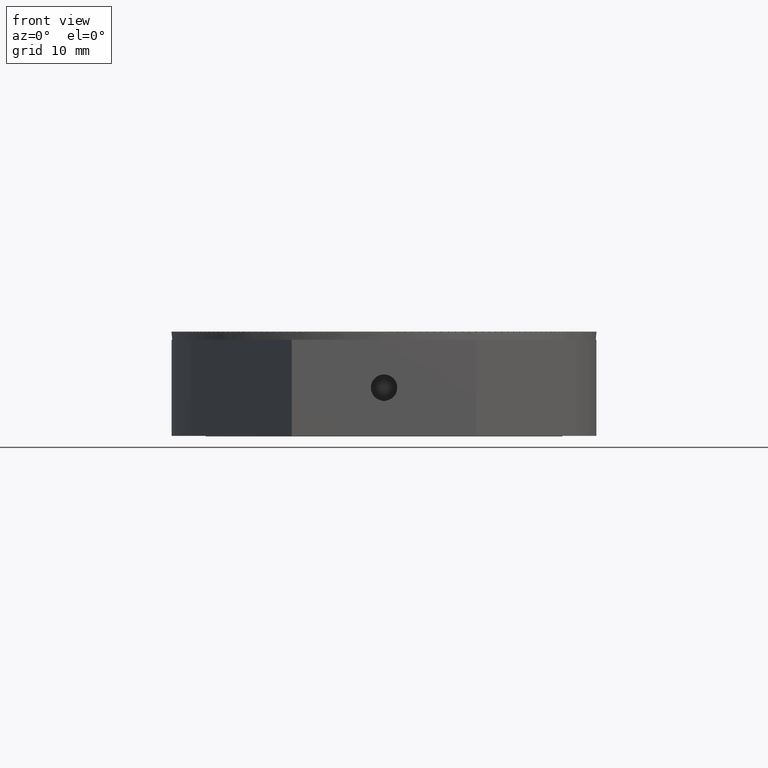
[diagram: clean part render]
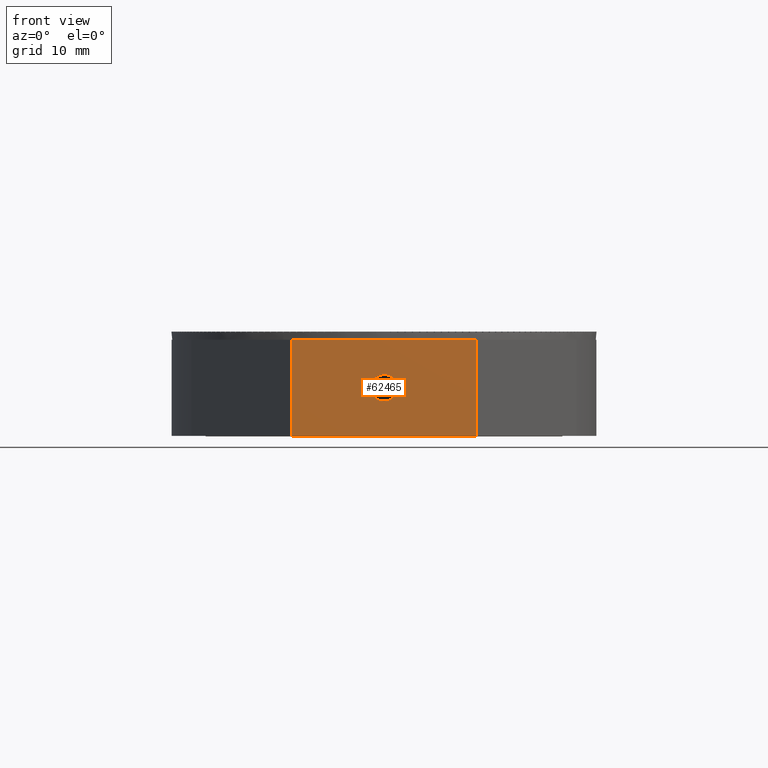
[diagram: same view with one face highlighted and labeled with its STEP entity id]
A machine part, front view. The second image highlights one B-rep face of the part: STEP entity #62465.
In plain terms, the highlighted planar face has unit normal (0, 1, -0).
Its self-contained STEP definition (entity closure, byte-faithful):
#970 = EDGE_CURVE ( 'NONE', #41103, #48562, #62684, .T. ) ;
#2914 = LINE ( 'NONE', #28442, #27291 ) ;
#3236 = CARTESIAN_POINT ( 'NONE',  ( 0.000000000000000000, 6.000000000000000000, 38.10000000000000142 ) ) ;
#7116 = VECTOR ( 'NONE', #36032, 1000.000000000000000 ) ;
#7720 = DIRECTION ( 'NONE',  ( 1.000000000000000000, 0.000000000000000000, 0.000000000000000000 ) ) ;
#8651 = DIRECTION ( 'NONE',  ( 1.000000000000000000, 0.000000000000000000, 0.000000000000000000 ) ) ;
#8816 = EDGE_LOOP ( 'NONE', ( #23874, #43748 ) ) ;
#9517 = ORIENTED_EDGE ( 'NONE', *, *, #15923, .T. ) ;
#12876 = DIRECTION ( 'NONE',  ( -0.000000000000000000, -1.000000000000000000, -0.000000000000000000 ) ) ;
#14700 = VECTOR ( 'NONE', #58302, 1000.000000000000000 ) ;
#15290 = CARTESIAN_POINT ( 'NONE',  ( -11.49999999999999467, 0.000000000000000000, 38.10000000000000142 ) ) ;
#15923 = EDGE_CURVE ( 'NONE', #42024, #56861, #17507, .T. ) ;
#15964 = ORIENTED_EDGE ( 'NONE', *, *, #22472, .F. ) ;
#17417 = EDGE_CURVE ( 'NONE', #21274, #35539, #45932, .T. ) ;
#17507 = LINE ( 'NONE', #36990, #7116 ) ;
#17841 = CARTESIAN_POINT ( 'NONE',  ( -11.49999999999999467, 12.00000000000000000, 38.10000000000000142 ) ) ;
#18424 = AXIS2_PLACEMENT_3D ( 'NONE', #3236, #27504, #7720 ) ;
#20956 = DIRECTION ( 'NONE',  ( -0.000000000000000000, -0.000000000000000000, 1.000000000000000000 ) ) ;
#21274 = VERTEX_POINT ( 'NONE', #47049 ) ;
#22472 = EDGE_CURVE ( 'NONE', #42024, #41103, #2914, .T. ) ;
#23874 = ORIENTED_EDGE ( 'NONE', *, *, #39569, .F. ) ;
#24715 = AXIS2_PLACEMENT_3D ( 'NONE', #35936, #20956, #44922 ) ;
#27291 = VECTOR ( 'NONE', #8651, 1000.000000000000000 ) ;
#27504 = DIRECTION ( 'NONE',  ( -0.000000000000000000, -0.000000000000000000, 1.000000000000000000 ) ) ;
#28442 = CARTESIAN_POINT ( 'NONE',  ( -11.49999999999999467, 12.00000000000000000, 38.10000000000000142 ) ) ;
#29123 = CARTESIAN_POINT ( 'NONE',  ( -11.49999999999999467, 12.00000000000000000, 38.10000000000000142 ) ) ;
#31567 = FACE_OUTER_BOUND ( 'NONE', #60411, .T. ) ;
#31877 = DIRECTION ( 'NONE',  ( 0.000000000000000000, 0.000000000000000000, -1.000000000000000000 ) ) ;
#32284 = CARTESIAN_POINT ( 'NONE',  ( 11.50000000000000533, 12.00000000000000000, 38.10000000000000142 ) ) ;
#35539 = VERTEX_POINT ( 'NONE', #36826 ) ;
#35936 = CARTESIAN_POINT ( 'NONE',  ( 0.000000000000000000, 6.000000000000000000, 38.10000000000000142 ) ) ;
#36032 = DIRECTION ( 'NONE',  ( -0.000000000000000000, -1.000000000000000000, -0.000000000000000000 ) ) ;
#36678 = DIRECTION ( 'NONE',  ( -1.000000000000000000, 0.000000000000000000, -0.000000000000000000 ) ) ;
#36826 = CARTESIAN_POINT ( 'NONE',  ( 1.649999999999989919, 6.000000000000000000, 38.10000000000000142 ) ) ;
#36990 = CARTESIAN_POINT ( 'NONE',  ( -11.49999999999999467, 12.00000000000000000, 38.10000000000000142 ) ) ;
#36995 = FACE_BOUND ( 'NONE', #8816, .T. ) ;
#39128 = LINE ( 'NONE', #58619, #14700 ) ;
#39569 = EDGE_CURVE ( 'NONE', #35539, #21274, #53285, .T. ) ;
#41070 = ORIENTED_EDGE ( 'NONE', *, *, #970, .F. ) ;
#41103 = VERTEX_POINT ( 'NONE', #32284 ) ;
#42024 = VERTEX_POINT ( 'NONE', #29123 ) ;
#43748 = ORIENTED_EDGE ( 'NONE', *, *, #17417, .F. ) ;
#44098 = VECTOR ( 'NONE', #12876, 1000.000000000000000 ) ;
#44922 = DIRECTION ( 'NONE',  ( 1.000000000000000000, 0.000000000000000000, 0.000000000000000000 ) ) ;
#45932 = CIRCLE ( 'NONE', #18424, 1.649999999999989919 ) ;
#47049 = CARTESIAN_POINT ( 'NONE',  ( -1.649999999999989919, 6.000000000000000000, 38.10000000000000142 ) ) ;
#48562 = VERTEX_POINT ( 'NONE', #59453 ) ;
#51841 = CARTESIAN_POINT ( 'NONE',  ( 11.50000000000000533, 12.00000000000000000, 38.10000000000000142 ) ) ;
#52416 = ORIENTED_EDGE ( 'NONE', *, *, #62042, .T. ) ;
#53285 = CIRCLE ( 'NONE', #24715, 1.649999999999989919 ) ;
#53468 = AXIS2_PLACEMENT_3D ( 'NONE', #17841, #31877, #36678 ) ;
#55873 = PLANE ( 'NONE',  #53468 ) ;
#56861 = VERTEX_POINT ( 'NONE', #15290 ) ;
#58302 = DIRECTION ( 'NONE',  ( 1.000000000000000000, 0.000000000000000000, 0.000000000000000000 ) ) ;
#58619 = CARTESIAN_POINT ( 'NONE',  ( -11.49999999999999467, 0.000000000000000000, 38.10000000000000142 ) ) ;
#59453 = CARTESIAN_POINT ( 'NONE',  ( 11.50000000000000533, 0.000000000000000000, 38.10000000000000142 ) ) ;
#60411 = EDGE_LOOP ( 'NONE', ( #52416, #41070, #15964, #9517 ) ) ;
#62042 = EDGE_CURVE ( 'NONE', #56861, #48562, #39128, .T. ) ;
#62465 = ADVANCED_FACE ( 'NONE', ( #36995, #31567 ), #55873, .F. ) ;
#62684 = LINE ( 'NONE', #51841, #44098 ) ;